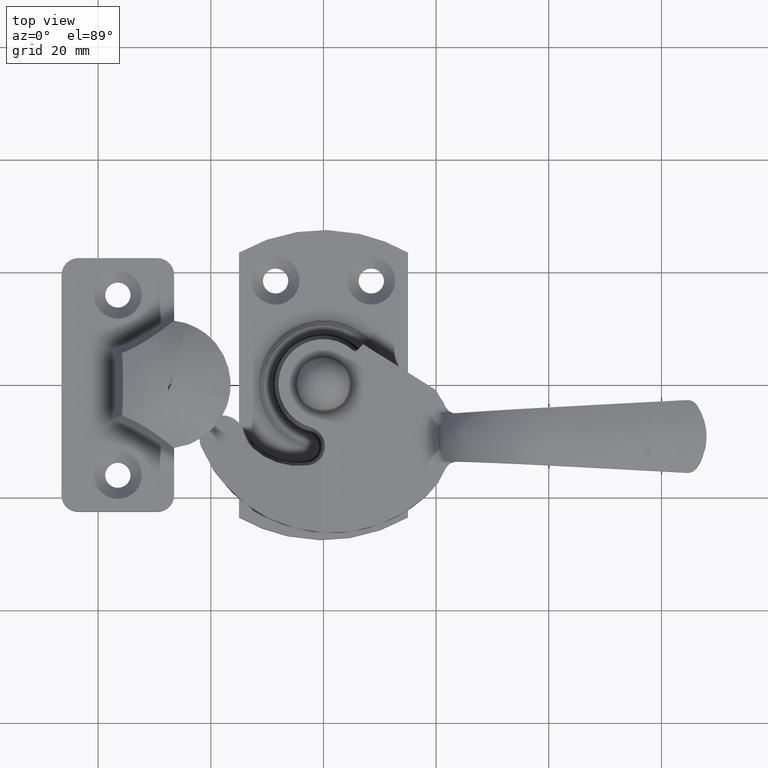
[diagram: clean part render]
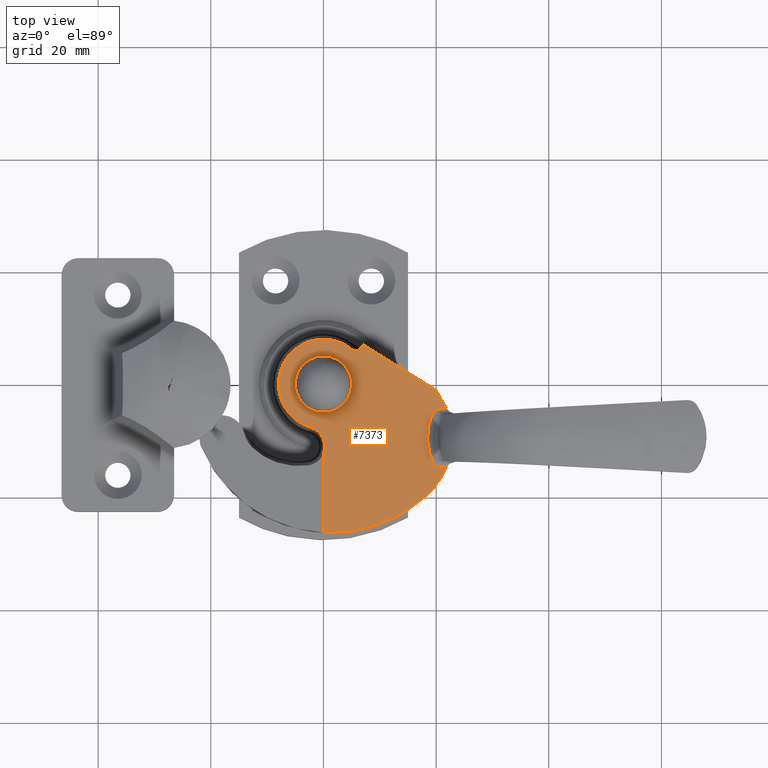
[diagram: same view with one face highlighted and labeled with its STEP entity id]
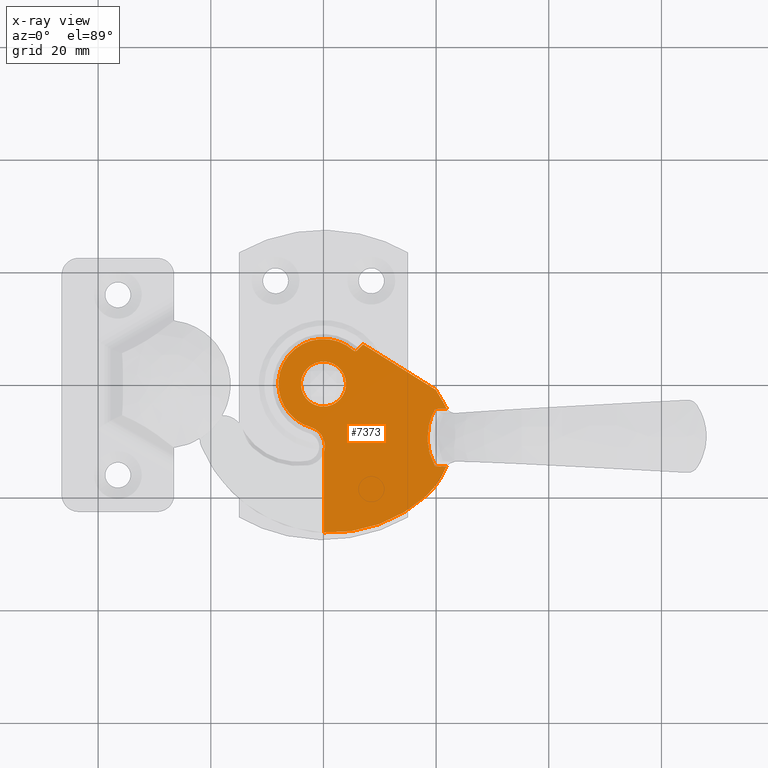
[diagram: x-ray of the same camera — body ghosted, the highlighted face saturated]
A machine part, top view. The second image highlights one B-rep face of the part: STEP entity #7373.
The next image is the same camera in x-ray: the body ghosted, the highlighted face saturated — about 0% of this face is hidden behind the body in this view.
In plain terms, the highlighted face is a freeform B-spline surface patch.
Its self-contained STEP definition (entity closure, byte-faithful):
#4563=CARTESIAN_POINT('',(-0.472136938667116,-3.972038105449901,12.600000000000000));
#4564=VERTEX_POINT('',#4563);
#4570=CARTESIAN_POINT('',(4.0,0.0,12.600000000000000));
#4571=VERTEX_POINT('',#4570);
#4572=CARTESIAN_POINT('',(-0.472136938667116,-3.972038105449900,12.599999999999994));
#4573=CARTESIAN_POINT('',(-0.236896478648146,-4.000000000000001,12.600000000000003));
#4574=CARTESIAN_POINT('',(0.0,-4.0,12.600000000000000));
#4575=CARTESIAN_POINT('',(4.000000000000000,-4.000000000000000,12.599999999999996));
#4576=CARTESIAN_POINT('',(4.0,0.0,12.600000000000000));
#4584=(BOUNDED_CURVE()B_SPLINE_CURVE(2,(#4572,#4573,#4574,#4575,#4576),.UNSPECIFIED.,.F.,.U.)B_SPLINE_CURVE_WITH_KNOTS((3,2,3),(0.229562473512233,0.250000000000000,0.500000000000000),.UNSPECIFIED.)CURVE()GEOMETRIC_REPRESENTATION_ITEM()RATIONAL_B_SPLINE_CURVE((0.956026754181200,0.976055948329651,1.0,0.707106781186548,1.0))REPRESENTATION_ITEM(''));
#4585=EDGE_CURVE('',#4564,#4571,#4584,.T.);
#4587=CARTESIAN_POINT('',(0.244194158270637,3.992539193679443,12.600000000000000));
#4588=VERTEX_POINT('',#4587);
#4589=CARTESIAN_POINT('',(4.0,0.0,12.600000000000000));
#4590=CARTESIAN_POINT('',(4.0,3.762824267374998,12.599999999999996));
#4591=CARTESIAN_POINT('',(0.244194158270637,3.992539193679443,12.600000000000003));
#4599=(BOUNDED_CURVE()B_SPLINE_CURVE(2,(#4589,#4590,#4591),.UNSPECIFIED.,.F.,.U.)B_SPLINE_CURVE_WITH_KNOTS((3,3),(0.500000000000000,0.739332962230627),.UNSPECIFIED.)CURVE()GEOMETRIC_REPRESENTATION_ITEM()RATIONAL_B_SPLINE_CURVE((1.0,0.719603993296453,0.976072041648896))REPRESENTATION_ITEM(''));
#4600=EDGE_CURVE('',#4571,#4588,#4599,.T.);
#4674=CARTESIAN_POINT('',(-4.0,0.0,12.600000000000000));
#4675=VERTEX_POINT('',#4674);
#4676=CARTESIAN_POINT('',(0.244194158270637,3.992539193679443,12.600000000000003));
#4677=CARTESIAN_POINT('',(0.122211053325933,4.0,12.600000000000001));
#4678=CARTESIAN_POINT('',(0.0,4.0,12.600000000000000));
#4679=CARTESIAN_POINT('',(-4.000000000000000,4.000000000000000,12.599999999999996));
#4680=CARTESIAN_POINT('',(-4.0,0.0,12.600000000000000));
#4688=(BOUNDED_CURVE()B_SPLINE_CURVE(2,(#4676,#4677,#4678,#4679,#4680),.UNSPECIFIED.,.F.,.U.)B_SPLINE_CURVE_WITH_KNOTS((3,2,3),(0.739332962230627,0.750000000000000,1.0),.UNSPECIFIED.)CURVE()GEOMETRIC_REPRESENTATION_ITEM()RATIONAL_B_SPLINE_CURVE((0.976072041648896,0.987502787890095,1.0,0.707106781186548,1.0))REPRESENTATION_ITEM(''));
#4689=EDGE_CURVE('',#4588,#4675,#4688,.T.);
#4691=CARTESIAN_POINT('',(-4.0,0.0,12.600000000000000));
#4692=CARTESIAN_POINT('',(-4.000000000000000,-3.552698103733263,12.600000000000000));
#4693=CARTESIAN_POINT('',(-0.472136938667116,-3.972038105449900,12.599999999999996));
#4701=(BOUNDED_CURVE()B_SPLINE_CURVE(2,(#4691,#4692,#4693),.UNSPECIFIED.,.F.,.U.)B_SPLINE_CURVE_WITH_KNOTS((3,3),(0.0,0.229562473512233),.UNSPECIFIED.)CURVE()GEOMETRIC_REPRESENTATION_ITEM()RATIONAL_B_SPLINE_CURVE((1.0,0.731050832856896,0.956026754181200))REPRESENTATION_ITEM(''));
#4702=EDGE_CURVE('',#4675,#4564,#4701,.T.);
#4944=CARTESIAN_POINT('',(-19.828042910150099,4.433272874120835,12.600000000000000));
#4945=VERTEX_POINT('',#4944);
#4980=CARTESIAN_POINT('',(-21.846079899655049,4.325928584541530,12.599999999999820));
#4981=VERTEX_POINT('',#4980);
#5013=CARTESIAN_POINT('',(-19.828042910150099,4.433272874120835,12.600000000000000));
#5014=CARTESIAN_POINT('',(-21.846079899655049,4.325928584541530,12.599999999999820));
#5015=QUASI_UNIFORM_CURVE('',1,(#5013,#5014),.UNSPECIFIED.,.F.,.U.);
#5016=EDGE_CURVE('',#4945,#4981,#5015,.T.);
#5037=CARTESIAN_POINT('',(-21.846079703462099,14.674071250133681,12.600000000000000));
#5038=VERTEX_POINT('',#5037);
#5077=CARTESIAN_POINT('',(-19.828042906694652,14.566726963481839,12.600000000000000));
#5078=VERTEX_POINT('',#5077);
#5106=CARTESIAN_POINT('',(-21.846079703462099,14.674071250133681,12.600000000000000));
#5107=CARTESIAN_POINT('',(-19.828042906694652,14.566726963481839,12.600000000000000));
#5108=QUASI_UNIFORM_CURVE('',1,(#5106,#5107),.UNSPECIFIED.,.F.,.U.);
#5109=EDGE_CURVE('',#5038,#5078,#5108,.T.);
#5348=CARTESIAN_POINT('',(-19.828042906694652,14.566726963481861,12.600000000000000));
#5349=CARTESIAN_POINT('',(-19.716203264557070,14.374200656655709,12.600000000000000));
#5350=CARTESIAN_POINT('',(-19.610880355610242,14.178369574488549,12.599999999999991));
#5351=CARTESIAN_POINT('',(-19.462699012321231,13.879651629219760,12.599999999999991));
#5352=CARTESIAN_POINT('',(-19.414939929003619,13.779249990449831,12.599999999999991));
#5353=CARTESIAN_POINT('',(-19.322707020189750,13.576780688121310,12.599999999999991));
#5354=CARTESIAN_POINT('',(-19.278186612173879,13.474594477644169,12.600000000000000));
#5355=CARTESIAN_POINT('',(-19.064769285224749,12.961724012628020,12.600000000000010));
#5356=CARTESIAN_POINT('',(-18.922866325211910,12.544438070644290,12.600000000000000));
#5357=CARTESIAN_POINT('',(-18.694721508924999,11.696372082838010,12.600000000000000));
#5358=CARTESIAN_POINT('',(-18.608473776002992,11.265593461710489,12.600000000000000));
#5359=CARTESIAN_POINT('',(-18.521395218215350,10.609172289306899,12.600000000000000));
#5360=CARTESIAN_POINT('',(-18.499429501783158,10.388494751730221,12.600000000000000));
#5361=CARTESIAN_POINT('',(-18.470062085784178,9.944268159297010,12.600000000000000));
#5362=CARTESIAN_POINT('',(-18.455431619328110,9.500092216154515,12.599999999999721));
#5363=CARTESIAN_POINT('',(-18.470051785087939,9.056016804249532,12.600000000000010));
#5364=CARTESIAN_POINT('',(-18.492054531982269,8.722998180427574,12.600000000000010));
#5365=CARTESIAN_POINT('',(-18.501234274062242,8.612027191189482,12.599999999999991));
#5366=CARTESIAN_POINT('',(-18.523161480679889,8.391272657113632,12.599999999999980));
#5367=CARTESIAN_POINT('',(-18.535917363562550,8.281341589639128,12.600000000000010));
#5368=CARTESIAN_POINT('',(-18.608549782106000,7.733890264762929,12.600000000000010));
#5369=CARTESIAN_POINT('',(-18.694871865961211,7.302953797206724,12.600000000000000));
#5370=CARTESIAN_POINT('',(-18.923072147600951,6.454911915096223,12.600000000000000));
#5371=CARTESIAN_POINT('',(-19.064957317324879,6.037808236251222,12.600000000000000));
#5372=CARTESIAN_POINT('',(-19.278205423618431,5.525364094070469,12.600000000000000));
#5373=CARTESIAN_POINT('',(-19.322708454690279,5.423215921370218,12.600000000000010));
#5374=CARTESIAN_POINT('',(-19.414941133587320,5.220747293200930,12.600000000000000));
#5375=CARTESIAN_POINT('',(-19.462700091431589,5.120345986180111,12.599999999999950));
#5376=CARTESIAN_POINT('',(-19.610881027077919,4.821629020330552,12.599999999999950));
#5377=CARTESIAN_POINT('',(-19.716203622677440,4.625798570027315,12.600000000000000));
#5378=CARTESIAN_POINT('',(-19.828042910150099,4.433272874120835,12.600000000000000));
#5379=B_SPLINE_CURVE_WITH_KNOTS('',3,(#5348,#5349,#5350,#5351,#5352,#5353,#5354,#5355,#5356,#5357,#5358,#5359,#5360,#5361,#5362,#5363,#5364,#5365,#5366,#5367,#5368,#5369,#5370,#5371,#5372,#5373,#5374,#5375,#5376,#5377,#5378),.UNSPECIFIED.,.F.,.U.,(4,2,2,2,2,2,2,1,2,2,2,2,2,2,2,4),(0.0,0.062499999999999,0.093749999999999,0.124999999999999,0.249999999999998,0.374999999999998,0.437499999999998,0.499999999999998,0.562499999999997,0.593749999999998,0.624999999999998,0.749999999999998,0.874999999999999,0.906249999999999,0.937500000000000,1.0),.UNSPECIFIED.);
#5380=EDGE_CURVE('',#5078,#4945,#5379,.T.);
#5400=CARTESIAN_POINT('',(-21.682247163966199,4.018421070235846,12.600000000000000));
#5401=VERTEX_POINT('',#5400);
#5402=CARTESIAN_POINT('',(-21.846079899655049,4.325928584541535,12.599999999999820));
#5403=CARTESIAN_POINT('',(-21.750719403555031,4.179337541171597,12.599999999999817));
#5404=CARTESIAN_POINT('',(-21.682247163966199,4.018421070235846,12.600000000000000));
#5412=(BOUNDED_CURVE()B_SPLINE_CURVE(2,(#5402,#5403,#5404),.UNSPECIFIED.,.F.,.U.)CURVE()GEOMETRIC_REPRESENTATION_ITEM()QUASI_UNIFORM_CURVE()RATIONAL_B_SPLINE_CURVE((1.0,0.996198962411696,1.0))REPRESENTATION_ITEM(''));
#5413=EDGE_CURVE('',#4981,#5401,#5412,.T.);
#5777=CARTESIAN_POINT('',(-21.682246988731649,14.981578711872601,12.600000000000000));
#5778=VERTEX_POINT('',#5777);
#5779=CARTESIAN_POINT('',(-21.682246988731649,14.981578711872601,12.600000000000000));
#5780=CARTESIAN_POINT('',(-21.750719222326417,14.820662269301675,12.600000000000001));
#5781=CARTESIAN_POINT('',(-21.846079703462109,14.674071250133681,12.600000000000000));
#5789=(BOUNDED_CURVE()B_SPLINE_CURVE(2,(#5779,#5780,#5781),.UNSPECIFIED.,.F.,.U.)CURVE()GEOMETRIC_REPRESENTATION_ITEM()QUASI_UNIFORM_CURVE()RATIONAL_B_SPLINE_CURVE((1.0,0.996198963641266,1.0))REPRESENTATION_ITEM(''));
#5790=EDGE_CURVE('',#5778,#5038,#5789,.T.);
#6526=CARTESIAN_POINT('',(-0.079048402841574,26.355083925734800,12.600000000000000));
#6527=VERTEX_POINT('',#6526);
#6537=CARTESIAN_POINT('',(-0.079048402841574,12.105208818202041,12.600000000000000));
#6538=VERTEX_POINT('',#6537);
#6539=CARTESIAN_POINT('',(-0.079048402841574,12.105208818202041,12.600000000000000));
#6540=CARTESIAN_POINT('',(-0.079048402841574,26.355083925734800,12.600000000000000));
#6541=QUASI_UNIFORM_CURVE('',1,(#6539,#6540),.UNSPECIFIED.,.F.,.U.);
#6542=EDGE_CURVE('',#6538,#6527,#6541,.T.);
#6758=CARTESIAN_POINT('',(-5.313746734249820,-5.979712773425181,12.600000000000000));
#6759=VERTEX_POINT('',#6758);
#6773=CARTESIAN_POINT('',(-6.003854804241240,-6.003854804241190,12.600000000000000));
#6774=VERTEX_POINT('',#6773);
#6775=CARTESIAN_POINT('',(-6.003854804241240,-6.003854804241190,12.600000000000000));
#6776=CARTESIAN_POINT('',(-5.981238517330546,-5.981238517330496,12.600000000000000));
#6777=CARTESIAN_POINT('',(-5.956878559049713,-5.961079724373485,12.600000000000000));
#6778=CARTESIAN_POINT('',(-5.904811486818115,-5.925479549642422,12.600000000000000));
#6779=CARTESIAN_POINT('',(-5.876847502896390,-5.909931682021863,12.600000000000000));
#6780=CARTESIAN_POINT('',(-5.818576567421202,-5.884382402742204,12.600000000000000));
#6781=CARTESIAN_POINT('',(-5.788619886510936,-5.874472472527418,12.600000000000000));
#6782=CARTESIAN_POINT('',(-5.727092773798688,-5.860281999865920,12.600000000000000));
#6783=CARTESIAN_POINT('',(-5.695174887680838,-5.856012948513893,12.600000000000000));
#6784=CARTESIAN_POINT('',(-5.631858299638703,-5.853605125131010,12.600000000000000));
#6785=CARTESIAN_POINT('',(-5.600381918251044,-5.855373560991124,12.600000000000000));
#6786=CARTESIAN_POINT('',(-5.537794383462705,-5.864878047453485,12.600000000000000));
#6787=CARTESIAN_POINT('',(-5.506532210091907,-5.872733878945057,12.600000000000000));
#6788=CARTESIAN_POINT('',(-5.447012506188441,-5.893911735773108,12.600000000000000));
#6789=CARTESIAN_POINT('',(-5.418422718054777,-5.907249644220386,12.600000000000000));
#6790=CARTESIAN_POINT('',(-5.363640955802572,-5.939558951142752,12.600000000000000));
#6791=CARTESIAN_POINT('',(-5.337663140221016,-5.958459959295174,12.600000000000000));
#6792=CARTESIAN_POINT('',(-5.313746734249820,-5.979712773425181,12.600000000000000));
#6793=B_SPLINE_CURVE_WITH_KNOTS('',3,(#6775,#6776,#6777,#6778,#6779,#6780,#6781,#6782,#6783,#6784,#6785,#6786,#6787,#6788,#6789,#6790,#6791,#6792),.UNSPECIFIED.,.F.,.U.,(4,2,2,2,2,2,2,2,4),(0.0,0.125000000000000,0.250000000000000,0.375000000000000,0.500000000000000,0.625000000000000,0.750000000000000,0.875000000000000,1.0),.UNSPECIFIED.);
#6794=EDGE_CURVE('',#6774,#6759,#6793,.T.);
#6966=CARTESIAN_POINT('',(2.262372028716430,7.672974900451860,12.600000000000000));
#6967=VERTEX_POINT('',#6966);
#6968=CARTESIAN_POINT('',(-0.079048402841578,12.105208818202041,12.600000000000000));
#6969=CARTESIAN_POINT('',(-0.532195332119203,10.700520099195684,12.600000000000003));
#6970=CARTESIAN_POINT('',(0.157230563349412,9.395459000444072,12.600000000000000));
#6971=CARTESIAN_POINT('',(0.846656458818026,8.090397901692461,12.600000000000003));
#6972=CARTESIAN_POINT('',(2.262372028716430,7.672974900451860,12.600000000000000));
#6980=(BOUNDED_CURVE()B_SPLINE_CURVE(2,(#6968,#6969,#6970,#6971,#6972),.UNSPECIFIED.,.F.,.U.)B_SPLINE_CURVE_WITH_KNOTS((3,2,3),(0.0,0.500000000000000,1.0),.UNSPECIFIED.)CURVE()GEOMETRIC_REPRESENTATION_ITEM()RATIONAL_B_SPLINE_CURVE((1.0,0.921437564414228,1.0,0.921437564414228,1.0))REPRESENTATION_ITEM(''));
#6981=EDGE_CURVE('',#6538,#6967,#6980,.T.);
#7015=CARTESIAN_POINT('',(-5.313746734249812,-5.979712773425175,12.600000000000000));
#7016=CARTESIAN_POINT('',(-1.250011813990291,-9.590865847089800,12.600000000000005));
#7017=CARTESIAN_POINT('',(3.603555286836323,-7.141936607330586,12.600000000000000));
#7018=CARTESIAN_POINT('',(8.457122387662942,-4.693007367571371,12.600000000000005));
#7019=CARTESIAN_POINT('',(7.966974059554819,0.721244440391294,12.600000000000000));
#7020=CARTESIAN_POINT('',(7.476825731446696,6.135496248353957,12.600000000000005));
#7021=CARTESIAN_POINT('',(2.262372028716430,7.672974900451860,12.600000000000000));
#7029=(BOUNDED_CURVE()B_SPLINE_CURVE(2,(#7015,#7016,#7017,#7018,#7019,#7020,#7021),.UNSPECIFIED.,.F.,.U.)B_SPLINE_CURVE_WITH_KNOTS((3,2,2,3),(0.0,0.333333333333333,0.666666666666667,1.0),.UNSPECIFIED.)CURVE()GEOMETRIC_REPRESENTATION_ITEM()RATIONAL_B_SPLINE_CURVE((1.0,0.827085312218304,1.0,0.827085312218304,1.0,0.827085312218304,1.0))REPRESENTATION_ITEM(''));
#7030=EDGE_CURVE('',#6759,#6967,#7029,.T.);
#7045=CARTESIAN_POINT('',(-7.036334000000210,-7.036334000000000,12.600000000000000));
#7046=VERTEX_POINT('',#7045);
#7047=CARTESIAN_POINT('',(-7.036334000000210,-7.036334000000000,12.600000000000000));
#7048=CARTESIAN_POINT('',(-6.003854804241240,-6.003854804241190,12.600000000000000));
#7049=QUASI_UNIFORM_CURVE('',1,(#7047,#7048),.UNSPECIFIED.,.F.,.U.);
#7050=EDGE_CURVE('',#7046,#6774,#7049,.T.);
#7065=CARTESIAN_POINT('',(-19.948954665584850,1.032366926659034,12.600000000000000));
#7066=VERTEX_POINT('',#7065);
#7067=CARTESIAN_POINT('',(-19.948954665584850,1.032366926659034,12.600000000000000));
#7068=CARTESIAN_POINT('',(-7.036334000000210,-7.036334000000000,12.600000000000000));
#7069=QUASI_UNIFORM_CURVE('',1,(#7067,#7068),.UNSPECIFIED.,.F.,.U.);
#7070=EDGE_CURVE('',#7066,#7046,#7069,.T.);
#7272=CARTESIAN_POINT('',(-18.256174143053201,19.823795684708450,12.600000000000000));
#7273=VERTEX_POINT('',#7272);
#7274=CARTESIAN_POINT('',(-0.079048402841557,26.355083925734810,12.600000000000000));
#7275=CARTESIAN_POINT('',(-10.535291057541116,26.895807936510721,12.599999999999996));
#7276=CARTESIAN_POINT('',(-18.256174143053180,19.823795684708429,12.600000000000000));
#7284=(BOUNDED_CURVE()B_SPLINE_CURVE(2,(#7274,#7275,#7276),.UNSPECIFIED.,.F.,.U.)CURVE()GEOMETRIC_REPRESENTATION_ITEM()QUASI_UNIFORM_CURVE()RATIONAL_B_SPLINE_CURVE((1.0,0.922373974857740,1.0))REPRESENTATION_ITEM(''));
#7285=EDGE_CURVE('',#6527,#7273,#7284,.T.);
#7313=CARTESIAN_POINT('',(-21.682247163966188,4.018421070235850,12.600000000000000));
#7314=CARTESIAN_POINT('',(-21.001120551272447,2.417706803647479,12.600000000000001));
#7315=CARTESIAN_POINT('',(-19.948954665584861,1.032366926659022,12.600000000000000));
#7323=(BOUNDED_CURVE()B_SPLINE_CURVE(2,(#7313,#7314,#7315),.UNSPECIFIED.,.F.,.U.)CURVE()GEOMETRIC_REPRESENTATION_ITEM()QUASI_UNIFORM_CURVE()RATIONAL_B_SPLINE_CURVE((1.0,0.992368312910890,1.0))REPRESENTATION_ITEM(''));
#7324=EDGE_CURVE('',#5401,#7066,#7323,.T.);
#7334=CARTESIAN_POINT('',(-23.336701298838740,28.106084650421149,12.600000000000000));
#7335=CARTESIAN_POINT('',(9.486790211415876,28.106084650421149,12.600000000000000));
#7336=CARTESIAN_POINT('',(-23.336701298838740,-9.716795954677997,12.600000000000000));
#7337=CARTESIAN_POINT('',(9.486790211415876,-9.716795954677997,12.600000000000000));
#7338=B_SPLINE_SURFACE_WITH_KNOTS('',1,1,((#7334,#7336),(#7335,#7337)),.UNSPECIFIED.,.F.,.F.,.U.,(2,2),(2,2),(0.0,32.823491510254613),(0.0,37.822880605099137),.UNSPECIFIED.);
#7339=ORIENTED_EDGE('',*,*,#5790,.T.);
#7340=ORIENTED_EDGE('',*,*,#5109,.T.);
#7341=ORIENTED_EDGE('',*,*,#5380,.T.);
#7342=ORIENTED_EDGE('',*,*,#5016,.T.);
#7343=ORIENTED_EDGE('',*,*,#5413,.T.);
#7344=ORIENTED_EDGE('',*,*,#7324,.T.);
#7345=ORIENTED_EDGE('',*,*,#7070,.T.);
#7346=ORIENTED_EDGE('',*,*,#7050,.T.);
#7347=ORIENTED_EDGE('',*,*,#6794,.T.);
#7348=ORIENTED_EDGE('',*,*,#7030,.T.);
#7349=ORIENTED_EDGE('',*,*,#6981,.F.);
#7350=ORIENTED_EDGE('',*,*,#6542,.T.);
#7351=ORIENTED_EDGE('',*,*,#7285,.T.);
#7352=CARTESIAN_POINT('',(-18.256174143053190,19.823795684708450,12.600000000000000));
#7353=CARTESIAN_POINT('',(-20.494025322135798,17.774015785064645,12.599999999999998));
#7354=CARTESIAN_POINT('',(-21.682246988731642,14.981578711872601,12.600000000000000));
#7362=(BOUNDED_CURVE()B_SPLINE_CURVE(2,(#7352,#7353,#7354),.UNSPECIFIED.,.F.,.U.)CURVE()GEOMETRIC_REPRESENTATION_ITEM()QUASI_UNIFORM_CURVE()RATIONAL_B_SPLINE_CURVE((1.0,0.977302982016075,1.0))REPRESENTATION_ITEM(''));
#7363=EDGE_CURVE('',#7273,#5778,#7362,.T.);
#7364=ORIENTED_EDGE('',*,*,#7363,.T.);
#7365=EDGE_LOOP('',(#7339,#7340,#7341,#7342,#7343,#7344,#7345,#7346,#7347,#7348,#7349,#7350,#7351,#7364));
#7366=FACE_OUTER_BOUND('',#7365,.T.);
#7367=ORIENTED_EDGE('',*,*,#4600,.F.);
#7368=ORIENTED_EDGE('',*,*,#4585,.F.);
#7369=ORIENTED_EDGE('',*,*,#4702,.F.);
#7370=ORIENTED_EDGE('',*,*,#4689,.F.);
#7371=EDGE_LOOP('',(#7367,#7368,#7369,#7370));
#7372=FACE_BOUND('',#7371,.T.);
#7373=ADVANCED_FACE('',(#7366,#7372),#7338,.F.);